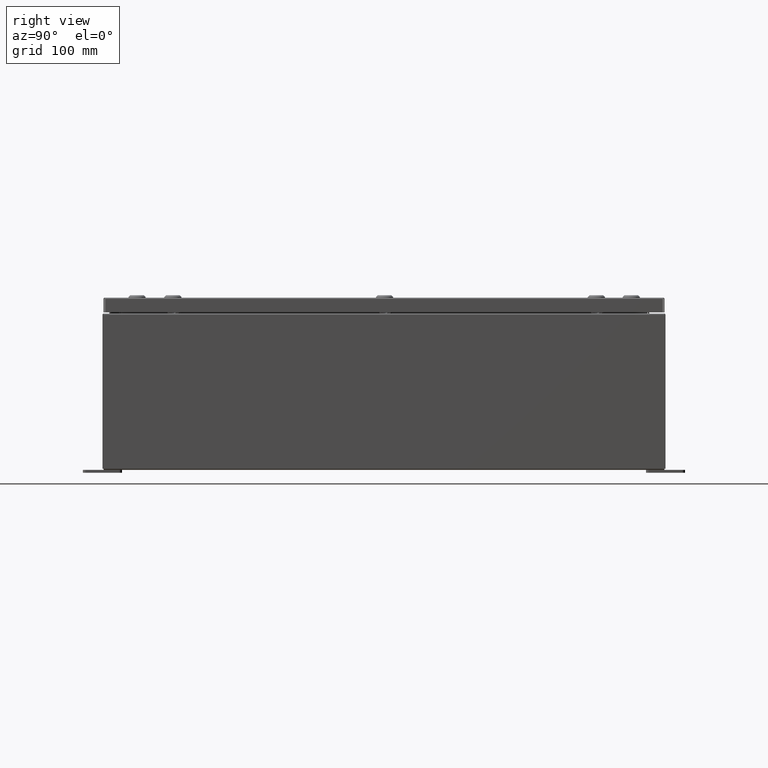
[diagram: clean part render]
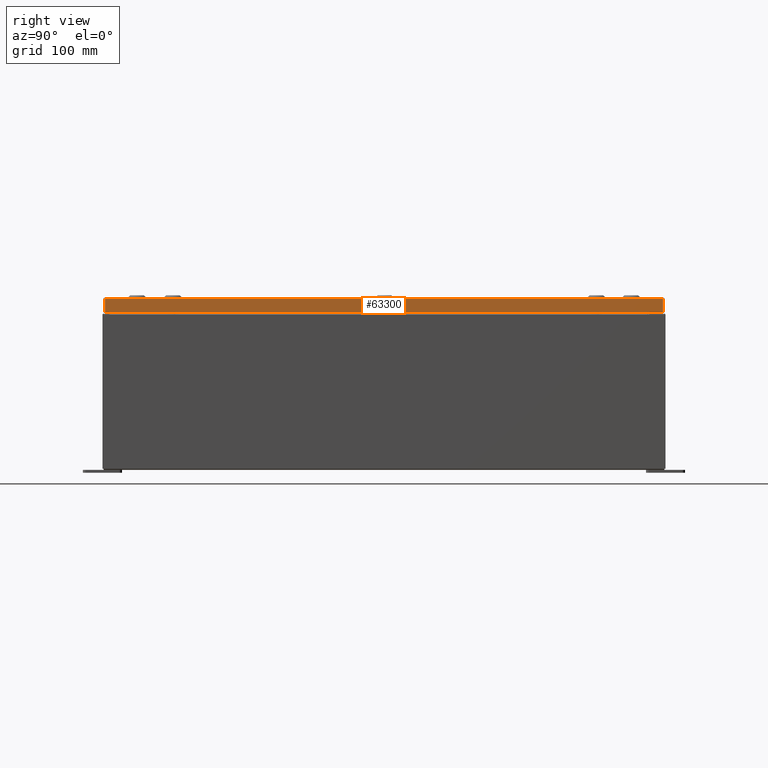
[diagram: same view with one face highlighted and labeled with its STEP entity id]
A machine part, right view. The second image highlights one B-rep face of the part: STEP entity #63300.
In plain terms, the highlighted planar face has unit normal (1, 0, 0).
Its self-contained STEP definition (entity closure, byte-faithful):
#2583 = CARTESIAN_POINT ( 'NONE',  ( 11.93750000000000200, -17.84865786437626100, -0.9376999999999997600 ) ) ;
#3031 = VECTOR ( 'NONE', #19494, 39.37007874015748100 ) ;
#4276 = VERTEX_POINT ( 'NONE', #7757 ) ;
#5419 = VECTOR ( 'NONE', #12699, 39.37007874015748100 ) ;
#5888 = CARTESIAN_POINT ( 'NONE',  ( 11.93750000000000200, -17.93749999999999600, -0.9376999999999997600 ) ) ;
#6210 = LINE ( 'NONE', #5888, #19438 ) ;
#6989 = LINE ( 'NONE', #17654, #5419 ) ;
#7757 = CARTESIAN_POINT ( 'NONE',  ( 11.93750000000000000, -17.84865786437626800, -0.08770000000000008300 ) ) ;
#8108 = DIRECTION ( 'NONE',  ( 1.000000000000000000, 0.0000000000000000000, 2.532419924601866100E-015 ) ) ;
#12699 = DIRECTION ( 'NONE',  ( 0.0000000000000000000, -1.000000000000000000, 0.0000000000000000000 ) ) ;
#13143 = ORIENTED_EDGE ( 'NONE', *, *, #32368, .F. ) ;
#16736 = EDGE_CURVE ( 'NONE', #47527, #4276, #31368, .T. ) ;
#17654 = CARTESIAN_POINT ( 'NONE',  ( 11.93750000000000000, 0.0000000000000000000, -0.08770000000000008300 ) ) ;
#19438 = VECTOR ( 'NONE', #40596, 39.37007874015748100 ) ;
#19494 = DIRECTION ( 'NONE',  ( -2.532419924601866100E-015, -6.982962677686265900E-015, 1.000000000000000000 ) ) ;
#22562 = DIRECTION ( 'NONE',  ( -2.532419924601866100E-015, -6.982962677686265900E-015, 1.000000000000000000 ) ) ;
#22869 = CARTESIAN_POINT ( 'NONE',  ( 11.93750000000000000, 0.0000000000000000000, 3.049157650594635900E-014 ) ) ;
#24481 = EDGE_CURVE ( 'NONE', #43592, #47834, #29470, .T. ) ;
#27826 = PLANE ( 'NONE',  #30781 ) ;
#29470 = LINE ( 'NONE', #54160, #3031 ) ;
#29814 = VECTOR ( 'NONE', #22562, 39.37007874015748100 ) ;
#30781 = AXIS2_PLACEMENT_3D ( 'NONE', #22869, #8108, #42783 ) ;
#31368 = LINE ( 'NONE', #57217, #29814 ) ;
#32368 = EDGE_CURVE ( 'NONE', #43592, #47527, #6210, .T. ) ;
#37505 = ORIENTED_EDGE ( 'NONE', *, *, #16736, .F. ) ;
#40596 = DIRECTION ( 'NONE',  ( 0.0000000000000000000, -1.000000000000000000, 0.0000000000000000000 ) ) ;
#42783 = DIRECTION ( 'NONE',  ( 2.532419924601866100E-015, 0.0000000000000000000, -1.000000000000000000 ) ) ;
#43345 = EDGE_LOOP ( 'NONE', ( #37505, #13143, #58449, #49551 ) ) ;
#43435 = FACE_OUTER_BOUND ( 'NONE', #43345, .T. ) ;
#43592 = VERTEX_POINT ( 'NONE', #45442 ) ;
#45442 = CARTESIAN_POINT ( 'NONE',  ( 11.93750000000000200, 17.84865786437627800, -0.9376999999999997600 ) ) ;
#47527 = VERTEX_POINT ( 'NONE', #2583 ) ;
#47834 = VERTEX_POINT ( 'NONE', #59905 ) ;
#49551 = ORIENTED_EDGE ( 'NONE', *, *, #63259, .T. ) ;
#54160 = CARTESIAN_POINT ( 'NONE',  ( 11.93750000000000000, 17.84865786437627500, 1.551280882196773500E-013 ) ) ;
#57217 = CARTESIAN_POINT ( 'NONE',  ( 11.93750000000000000, -17.84865786437626800, -0.07469999999999980800 ) ) ;
#58449 = ORIENTED_EDGE ( 'NONE', *, *, #24481, .T. ) ;
#59905 = CARTESIAN_POINT ( 'NONE',  ( 11.93750000000000000, 17.84865786437627100, -0.08770000000000008300 ) ) ;
#63259 = EDGE_CURVE ( 'NONE', #47834, #4276, #6989, .T. ) ;
#63300 = ADVANCED_FACE ( 'NONE', ( #43435 ), #27826, .T. ) ;